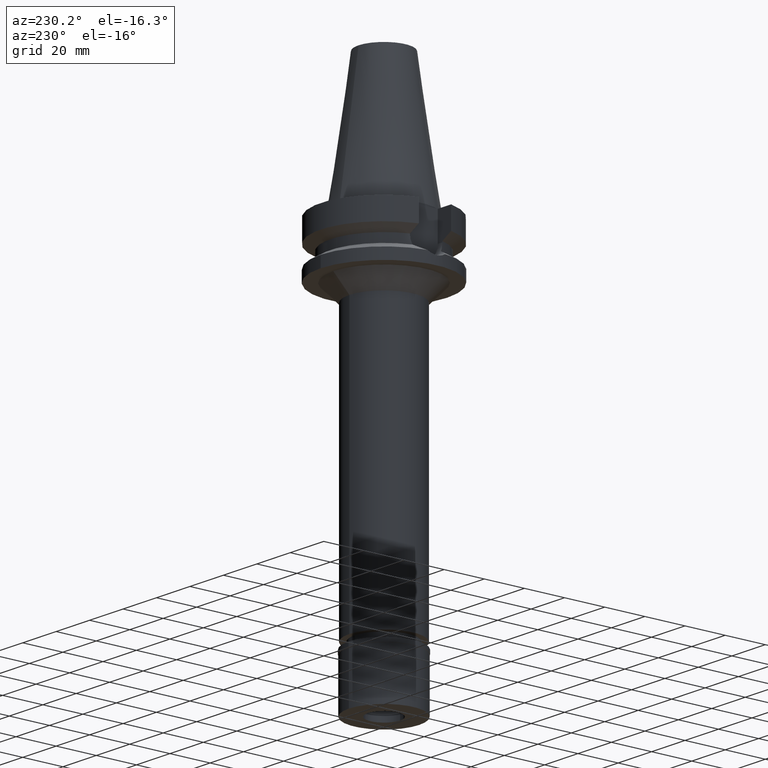
[diagram: clean part render]
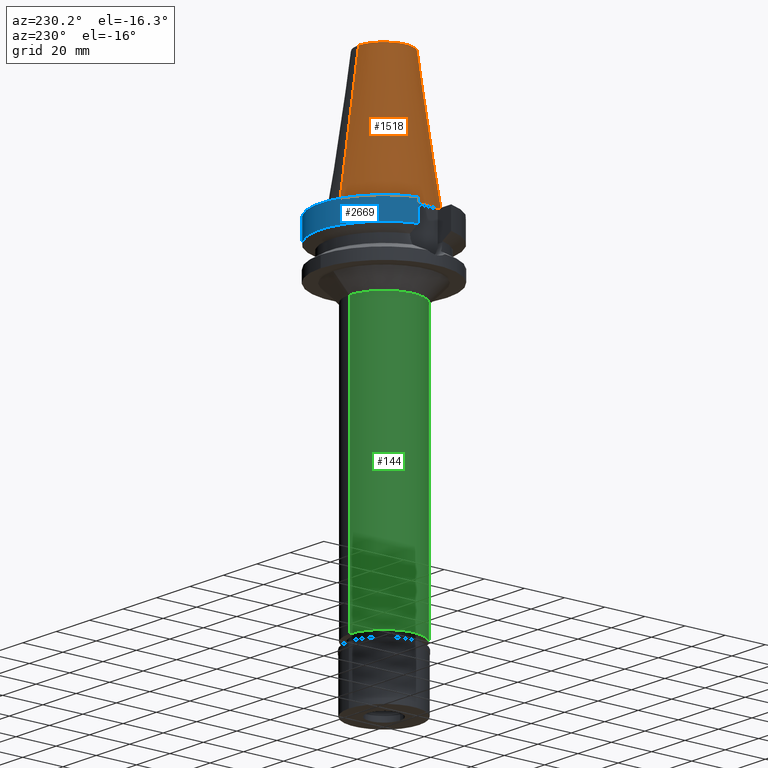
[diagram: same view with three faces highlighted in distinct colors, each labeled with its STEP entity id]
A machine part, auxiliary view with three faces highlighted in distinct colors.
Their STEP definitions:

[orange] entity #1518 — the highlighted conical surface has half-angle 8.297 deg.
#34 = AXIS2_PLACEMENT_3D ( 'NONE', #819, #2732, #2948 ) ;
#77 = VECTOR ( 'NONE', #2632, 1000.000000000000114 ) ;
#203 = LINE ( 'NONE', #1181, #77 ) ;
#217 = AXIS2_PLACEMENT_3D ( 'NONE', #2153, #3065, #1910 ) ;
#385 = AXIS2_PLACEMENT_3D ( 'NONE', #2831, #542, #1247 ) ;
#390 = VERTEX_POINT ( 'NONE', #2193 ) ;
#542 = DIRECTION ( 'NONE',  ( 0.0000000000000000000, 0.0000000000000000000, -1.000000000000000000 ) ) ;
#722 = ORIENTED_EDGE ( 'NONE', *, *, #975, .F. ) ;
#819 = CARTESIAN_POINT ( 'NONE',  ( 0.0000000000000000000, 0.0000000000000000000, 32.70000000000000284 ) ) ;
#975 = EDGE_CURVE ( 'NONE', #2914, #1717, #203, .T. ) ;
#1101 = CIRCLE ( 'NONE', #385, 22.22500000000000142 ) ;
#1103 = EDGE_CURVE ( 'NONE', #3031, #390, #2779, .T. ) ;
#1132 = DIRECTION ( 'NONE',  ( 0.0000000000000000000, 0.1443043893539925626, -0.9895333461855498891 ) ) ;
#1157 = ORIENTED_EDGE ( 'NONE', *, *, #2817, .T. ) ;
#1181 = CARTESIAN_POINT ( 'NONE',  ( 0.0000000000000000000, -12.68766899429999917, 65.40000000000000568 ) ) ;
#1196 = VECTOR ( 'NONE', #1132, 1000.000000000000114 ) ;
#1247 = DIRECTION ( 'NONE',  ( 0.0000000000000000000, -1.000000000000000000, 0.0000000000000000000 ) ) ;
#1336 = EDGE_CURVE ( 'NONE', #1717, #390, #1101, .T. ) ;
#1518 = ADVANCED_FACE ( 'NONE', ( #2211 ), #2908, .T. ) ;
#1716 = CARTESIAN_POINT ( 'NONE',  ( 0.0000000000000000000, -12.68766899429999917, 65.40000000000000568 ) ) ;
#1717 = VERTEX_POINT ( 'NONE', #1853 ) ;
#1853 = CARTESIAN_POINT ( 'NONE',  ( 0.0000000000000000000, -22.22500000000000142, 0.0000000000000000000 ) ) ;
#1910 = DIRECTION ( 'NONE',  ( 0.0000000000000000000, -1.000000000000000000, 0.0000000000000000000 ) ) ;
#2153 = CARTESIAN_POINT ( 'NONE',  ( 0.0000000000000000000, 0.0000000000000000000, 65.40000000000000568 ) ) ;
#2193 = CARTESIAN_POINT ( 'NONE',  ( 0.0000000000000000000, 22.22500000000000142, 4.263256414560999963E-14 ) ) ;
#2196 = ORIENTED_EDGE ( 'NONE', *, *, #1103, .T. ) ;
#2211 = FACE_OUTER_BOUND ( 'NONE', #2899, .T. ) ;
#2293 = CIRCLE ( 'NONE', #217, 12.68766899429999917 ) ;
#2632 = DIRECTION ( 'NONE',  ( 0.0000000000000000000, -0.1443043893539925626, -0.9895333461855498891 ) ) ;
#2675 = ORIENTED_EDGE ( 'NONE', *, *, #1336, .F. ) ;
#2716 = CARTESIAN_POINT ( 'NONE',  ( 0.0000000000000000000, 12.68766899429999917, 65.40000000000000568 ) ) ;
#2732 = DIRECTION ( 'NONE',  ( 0.0000000000000000000, 0.0000000000000000000, -1.000000000000000000 ) ) ;
#2779 = LINE ( 'NONE', #3059, #1196 ) ;
#2817 = EDGE_CURVE ( 'NONE', #2914, #3031, #2293, .T. ) ;
#2831 = CARTESIAN_POINT ( 'NONE',  ( 0.0000000000000000000, 0.0000000000000000000, 0.0000000000000000000 ) ) ;
#2899 = EDGE_LOOP ( 'NONE', ( #2675, #722, #1157, #2196 ) ) ;
#2908 = CONICAL_SURFACE ( 'NONE', #34, 17.45633449714999941, 0.1448099680379422438 ) ;
#2914 = VERTEX_POINT ( 'NONE', #1716 ) ;
#2948 = DIRECTION ( 'NONE',  ( 0.0000000000000000000, -1.000000000000000000, 0.0000000000000000000 ) ) ;
#3031 = VERTEX_POINT ( 'NONE', #2716 ) ;
#3059 = CARTESIAN_POINT ( 'NONE',  ( 0.0000000000000000000, 12.68766899429999917, 65.40000000000000568 ) ) ;
#3065 = DIRECTION ( 'NONE',  ( 0.0000000000000000000, 0.0000000000000000000, -1.000000000000000000 ) ) ;

[blue] entity #2669 — the highlighted cylindrical surface (partial cylindrical patch) has radius 31.5 mm, axis along (0, 0, -1).
#162 = CARTESIAN_POINT ( 'NONE',  ( 30.45402272279000044, 8.050000000000000711, -1.000000000000000000 ) ) ;
#316 = DIRECTION ( 'NONE',  ( 0.0000000000000000000, 1.000000000000000000, 0.0000000000000000000 ) ) ;
#348 = DIRECTION ( 'NONE',  ( 0.0000000000000000000, 0.0000000000000000000, -1.000000000000000000 ) ) ;
#410 = LINE ( 'NONE', #3002, #2112 ) ;
#493 = CARTESIAN_POINT ( 'NONE',  ( 0.0000000000000000000, 0.0000000000000000000, -11.56550565266999975 ) ) ;
#543 = CARTESIAN_POINT ( 'NONE',  ( 30.45402291365999758, 8.049999277899999583, -11.56551215646999964 ) ) ;
#609 = CYLINDRICAL_SURFACE ( 'NONE', #2644, 31.50000000000000000 ) ;
#725 = DIRECTION ( 'NONE',  ( 0.0000000000000000000, 1.000000000000000000, 0.0000000000000000000 ) ) ;
#832 = VECTOR ( 'NONE', #2455, 1000.000000000000114 ) ;
#860 = EDGE_CURVE ( 'NONE', #2522, #1364, #2409, .T. ) ;
#1014 = CARTESIAN_POINT ( 'NONE',  ( 30.45402291365999758, 8.049999277899999583, -11.56551215646999964 ) ) ;
#1044 = EDGE_CURVE ( 'NONE', #2415, #2104, #2661, .T. ) ;
#1066 = DIRECTION ( 'NONE',  ( 0.0000000000000000000, 0.0000000000000000000, -1.000000000000000000 ) ) ;
#1108 = DIRECTION ( 'NONE',  ( 0.0000000000000000000, -1.000000000000000000, 0.0000000000000000000 ) ) ;
#1109 = EDGE_CURVE ( 'NONE', #2415, #1364, #410, .T. ) ;
#1129 = ORIENTED_EDGE ( 'NONE', *, *, #860, .T. ) ;
#1248 = CARTESIAN_POINT ( 'NONE',  ( -30.45402272279000044, 8.050000000000000711, -1.000000000000000000 ) ) ;
#1297 = EDGE_LOOP ( 'NONE', ( #2886, #1719, #1428, #1129 ) ) ;
#1364 = VERTEX_POINT ( 'NONE', #2227 ) ;
#1428 = ORIENTED_EDGE ( 'NONE', *, *, #2002, .F. ) ;
#1719 = ORIENTED_EDGE ( 'NONE', *, *, #1044, .T. ) ;
#1818 = AXIS2_PLACEMENT_3D ( 'NONE', #493, #1973, #725 ) ;
#1973 = DIRECTION ( 'NONE',  ( 0.0000000000000000000, 0.0000000000000000000, 1.000000000000000000 ) ) ;
#2002 = EDGE_CURVE ( 'NONE', #2522, #2104, #2468, .T. ) ;
#2104 = VERTEX_POINT ( 'NONE', #162 ) ;
#2112 = VECTOR ( 'NONE', #3044, 1000.000000000000114 ) ;
#2227 = CARTESIAN_POINT ( 'NONE',  ( -30.45402162752999686, 8.050004143464001061, -11.56546833011000075 ) ) ;
#2268 = CARTESIAN_POINT ( 'NONE',  ( 0.0000000000000000000, 0.0000000000000000000, 0.0000000000000000000 ) ) ;
#2304 = FACE_OUTER_BOUND ( 'NONE', #1297, .T. ) ;
#2409 = CIRCLE ( 'NONE', #1818, 31.50000000000000000 ) ;
#2415 = VERTEX_POINT ( 'NONE', #1248 ) ;
#2455 = DIRECTION ( 'NONE',  ( -1.806576718050990391E-08, 6.834499293506961273E-08, 0.9999999999999974465 ) ) ;
#2468 = LINE ( 'NONE', #1014, #832 ) ;
#2522 = VERTEX_POINT ( 'NONE', #543 ) ;
#2644 = AXIS2_PLACEMENT_3D ( 'NONE', #2268, #348, #1108 ) ;
#2661 = CIRCLE ( 'NONE', #2905, 31.50000000000000000 ) ;
#2669 = ADVANCED_FACE ( 'NONE', ( #2304 ), #609, .T. ) ;
#2886 = ORIENTED_EDGE ( 'NONE', *, *, #1109, .F. ) ;
#2905 = AXIS2_PLACEMENT_3D ( 'NONE', #2938, #1066, #316 ) ;
#2938 = CARTESIAN_POINT ( 'NONE',  ( 0.0000000000000000000, 0.0000000000000000000, -1.000000000000000000 ) ) ;
#3002 = CARTESIAN_POINT ( 'NONE',  ( -30.45402272279000044, 8.050000000000000711, -1.000000000000000000 ) ) ;
#3044 = DIRECTION ( 'NONE',  ( 1.036636853978017609E-07, 3.921704259414068207E-07, -0.9999999999999177325 ) ) ;

[green] entity #144 — the highlighted cylindrical surface (partial cylindrical patch) has radius 17.25 mm, axis along (0, 0, -1).
#79 = LINE ( 'NONE', #2730, #2210 ) ;
#112 = CYLINDRICAL_SURFACE ( 'NONE', #525, 17.25000000000000000 ) ;
#138 = EDGE_LOOP ( 'NONE', ( #798, #671, #2420, #2982 ) ) ;
#144 = ADVANCED_FACE ( 'NONE', ( #1269 ), #112, .T. ) ;
#151 = EDGE_CURVE ( 'NONE', #160, #699, #2300, .T. ) ;
#160 = VERTEX_POINT ( 'NONE', #2016 ) ;
#176 = DIRECTION ( 'NONE',  ( 0.0000000000000000000, 0.0000000000000000000, -1.000000000000000000 ) ) ;
#225 = CARTESIAN_POINT ( 'NONE',  ( 0.0000000000000000000, -17.25000000000000000, -35.00000000000000000 ) ) ;
#359 = CARTESIAN_POINT ( 'NONE',  ( 0.0000000000000000000, -17.25000000000000000, -170.1999999999999886 ) ) ;
#525 = AXIS2_PLACEMENT_3D ( 'NONE', #2238, #1551, #553 ) ;
#553 = DIRECTION ( 'NONE',  ( 0.0000000000000000000, -1.000000000000000000, 0.0000000000000000000 ) ) ;
#664 = CARTESIAN_POINT ( 'NONE',  ( 0.0000000000000000000, 17.25000000000000000, -35.00000000000000000 ) ) ;
#671 = ORIENTED_EDGE ( 'NONE', *, *, #1048, .F. ) ;
#699 = VERTEX_POINT ( 'NONE', #359 ) ;
#798 = ORIENTED_EDGE ( 'NONE', *, *, #151, .T. ) ;
#945 = AXIS2_PLACEMENT_3D ( 'NONE', #1761, #1035, #1333 ) ;
#1035 = DIRECTION ( 'NONE',  ( 0.0000000000000000000, 0.0000000000000000000, 1.000000000000000000 ) ) ;
#1048 = EDGE_CURVE ( 'NONE', #1435, #699, #79, .T. ) ;
#1051 = VERTEX_POINT ( 'NONE', #2265 ) ;
#1269 = FACE_OUTER_BOUND ( 'NONE', #138, .T. ) ;
#1333 = DIRECTION ( 'NONE',  ( 0.0000000000000000000, 1.000000000000000000, 0.0000000000000000000 ) ) ;
#1435 = VERTEX_POINT ( 'NONE', #225 ) ;
#1551 = DIRECTION ( 'NONE',  ( 0.0000000000000000000, 0.0000000000000000000, -1.000000000000000000 ) ) ;
#1564 = DIRECTION ( 'NONE',  ( 0.0000000000000000000, 0.0000000000000000000, -1.000000000000000000 ) ) ;
#1702 = VECTOR ( 'NONE', #176, 1000.000000000000000 ) ;
#1761 = CARTESIAN_POINT ( 'NONE',  ( 0.0000000000000000000, 0.0000000000000000000, -170.1999999999999886 ) ) ;
#1789 = DIRECTION ( 'NONE',  ( 0.0000000000000000000, 0.0000000000000000000, -1.000000000000000000 ) ) ;
#1956 = DIRECTION ( 'NONE',  ( 0.0000000000000000000, -1.000000000000000000, 0.0000000000000000000 ) ) ;
#2016 = CARTESIAN_POINT ( 'NONE',  ( 0.0000000000000000000, 17.25000000000000000, -170.1999999999999886 ) ) ;
#2150 = AXIS2_PLACEMENT_3D ( 'NONE', #2499, #1789, #1956 ) ;
#2210 = VECTOR ( 'NONE', #1564, 1000.000000000000000 ) ;
#2238 = CARTESIAN_POINT ( 'NONE',  ( 0.0000000000000000000, 0.0000000000000000000, 0.0000000000000000000 ) ) ;
#2265 = CARTESIAN_POINT ( 'NONE',  ( 0.0000000000000000000, 17.25000000000000000, -35.00000000000000000 ) ) ;
#2300 = CIRCLE ( 'NONE', #945, 17.25000000000000000 ) ;
#2420 = ORIENTED_EDGE ( 'NONE', *, *, #2968, .T. ) ;
#2499 = CARTESIAN_POINT ( 'NONE',  ( 0.0000000000000000000, 0.0000000000000000000, -35.00000000000000000 ) ) ;
#2730 = CARTESIAN_POINT ( 'NONE',  ( 0.0000000000000000000, -17.25000000000000000, -35.00000000000000000 ) ) ;
#2750 = EDGE_CURVE ( 'NONE', #1051, #160, #2881, .T. ) ;
#2881 = LINE ( 'NONE', #664, #1702 ) ;
#2895 = CIRCLE ( 'NONE', #2150, 17.25000000000000000 ) ;
#2968 = EDGE_CURVE ( 'NONE', #1435, #1051, #2895, .T. ) ;
#2982 = ORIENTED_EDGE ( 'NONE', *, *, #2750, .T. ) ;